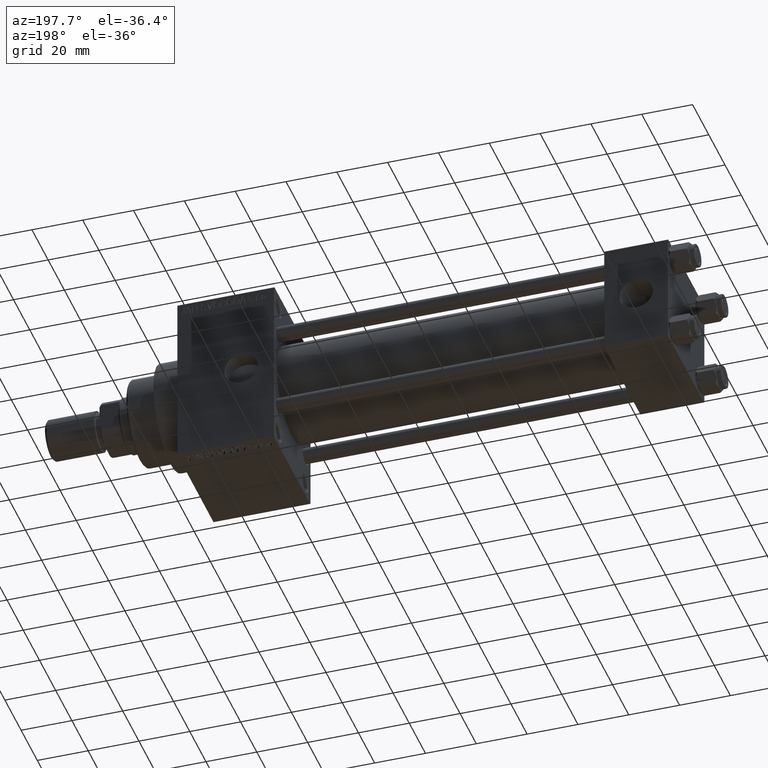
[diagram: clean part render]
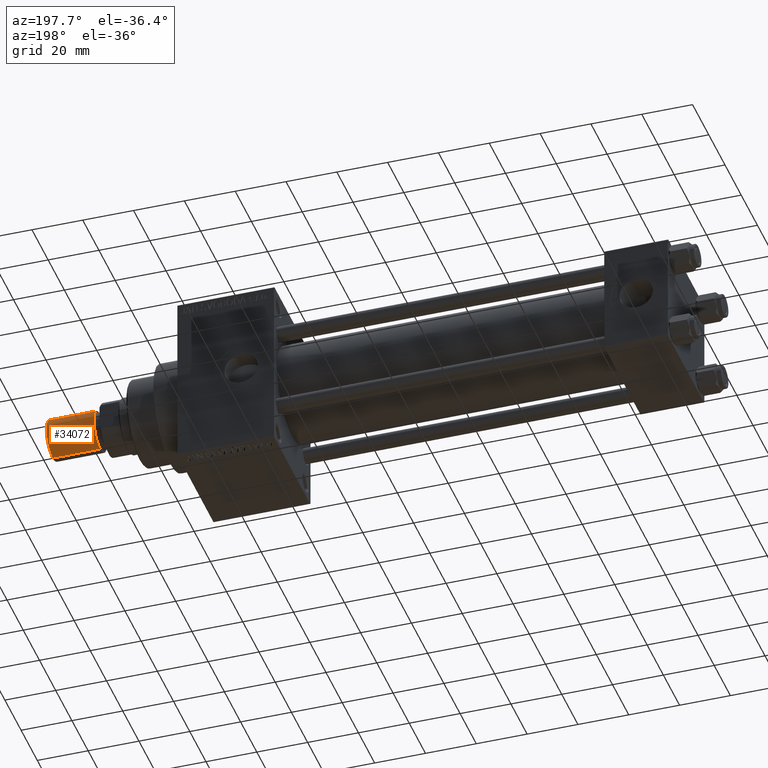
[diagram: same view with one face highlighted and labeled with its STEP entity id]
A machine part, auxiliary view. The second image highlights one B-rep face of the part: STEP entity #34072.
In plain terms, the highlighted cylindrical surface (edge-blend (fillet) strip) has radius 8 mm, axis along (1, -0, -0).
Its self-contained STEP definition (entity closure, byte-faithful):
#324 = VERTEX_POINT ( 'NONE', #3675 ) ;
#359 = CARTESIAN_POINT ( 'NONE',  ( 0.000000000000000000, 0.000000000000000000, 19.50000000000000000 ) ) ;
#2330 = VERTEX_POINT ( 'NONE', #36056 ) ;
#2496 = AXIS2_PLACEMENT_3D ( 'NONE', #359, #41965, #19398 ) ;
#3675 = CARTESIAN_POINT ( 'NONE',  ( 8.000000000000000000, 9.797174393178825657E-16, 19.50000000000000000 ) ) ;
#4145 = DIRECTION ( 'NONE',  ( -0.000000000000000000, -0.000000000000000000, -1.000000000000000000 ) ) ;
#5412 = ORIENTED_EDGE ( 'NONE', *, *, #34987, .F. ) ;
#6903 = DIRECTION ( 'NONE',  ( -1.000000000000000000, 0.000000000000000000, 0.000000000000000000 ) ) ;
#8801 = AXIS2_PLACEMENT_3D ( 'NONE', #10430, #17422, #6903 ) ;
#10430 = CARTESIAN_POINT ( 'NONE',  ( 0.000000000000000000, 0.000000000000000000, 19.50000000000000000 ) ) ;
#10902 = LINE ( 'NONE', #34176, #17958 ) ;
#14802 = ORIENTED_EDGE ( 'NONE', *, *, #47358, .T. ) ;
#14885 = AXIS2_PLACEMENT_3D ( 'NONE', #21579, #29081, #21822 ) ;
#16033 = CIRCLE ( 'NONE', #2496, 8.000000000000000000 ) ;
#17225 = VERTEX_POINT ( 'NONE', #42509 ) ;
#17422 = DIRECTION ( 'NONE',  ( -0.000000000000000000, -0.000000000000000000, -1.000000000000000000 ) ) ;
#17685 = CYLINDRICAL_SURFACE ( 'NONE', #8801, 8.000000000000000000 ) ;
#17958 = VECTOR ( 'NONE', #45711, 1000.000000000000000 ) ;
#18086 = CIRCLE ( 'NONE', #14885, 8.000000000000000000 ) ;
#19264 = EDGE_CURVE ( 'NONE', #35813, #17225, #26708, .T. ) ;
#19398 = DIRECTION ( 'NONE',  ( 1.000000000000000000, 0.000000000000000000, 0.000000000000000000 ) ) ;
#21579 = CARTESIAN_POINT ( 'NONE',  ( 0.000000000000000000, 0.000000000000000000, 0.8000000000000090372 ) ) ;
#21822 = DIRECTION ( 'NONE',  ( 1.000000000000000000, 0.000000000000000000, 0.000000000000000000 ) ) ;
#22315 = CARTESIAN_POINT ( 'NONE',  ( -8.000000000000000000, 0.000000000000000000, 19.50000000000000000 ) ) ;
#24480 = EDGE_LOOP ( 'NONE', ( #5412, #34463, #14802, #47240 ) ) ;
#26708 = LINE ( 'NONE', #34707, #39511 ) ;
#29081 = DIRECTION ( 'NONE',  ( -0.000000000000000000, -0.000000000000000000, 1.000000000000000000 ) ) ;
#34072 = ADVANCED_FACE ( 'NONE', ( #44740 ), #17685, .T. ) ;
#34176 = CARTESIAN_POINT ( 'NONE',  ( 8.000000000000000000, 9.797174393178825657E-16, 19.50000000000000000 ) ) ;
#34463 = ORIENTED_EDGE ( 'NONE', *, *, #43824, .T. ) ;
#34707 = CARTESIAN_POINT ( 'NONE',  ( -8.000000000000000000, 0.000000000000000000, 19.50000000000000000 ) ) ;
#34987 = EDGE_CURVE ( 'NONE', #324, #35813, #16033, .T. ) ;
#35813 = VERTEX_POINT ( 'NONE', #22315 ) ;
#36056 = CARTESIAN_POINT ( 'NONE',  ( 8.000000000000000000, 9.797174393178825657E-16, 0.8000000000000090372 ) ) ;
#39511 = VECTOR ( 'NONE', #4145, 1000.000000000000000 ) ;
#41965 = DIRECTION ( 'NONE',  ( 0.000000000000000000, 0.000000000000000000, 1.000000000000000000 ) ) ;
#42509 = CARTESIAN_POINT ( 'NONE',  ( -8.000000000000000000, 0.000000000000000000, 0.8000000000000090372 ) ) ;
#43824 = EDGE_CURVE ( 'NONE', #324, #2330, #10902, .T. ) ;
#44740 = FACE_OUTER_BOUND ( 'NONE', #24480, .T. ) ;
#45711 = DIRECTION ( 'NONE',  ( -0.000000000000000000, -0.000000000000000000, -1.000000000000000000 ) ) ;
#47240 = ORIENTED_EDGE ( 'NONE', *, *, #19264, .F. ) ;
#47358 = EDGE_CURVE ( 'NONE', #2330, #17225, #18086, .T. ) ;